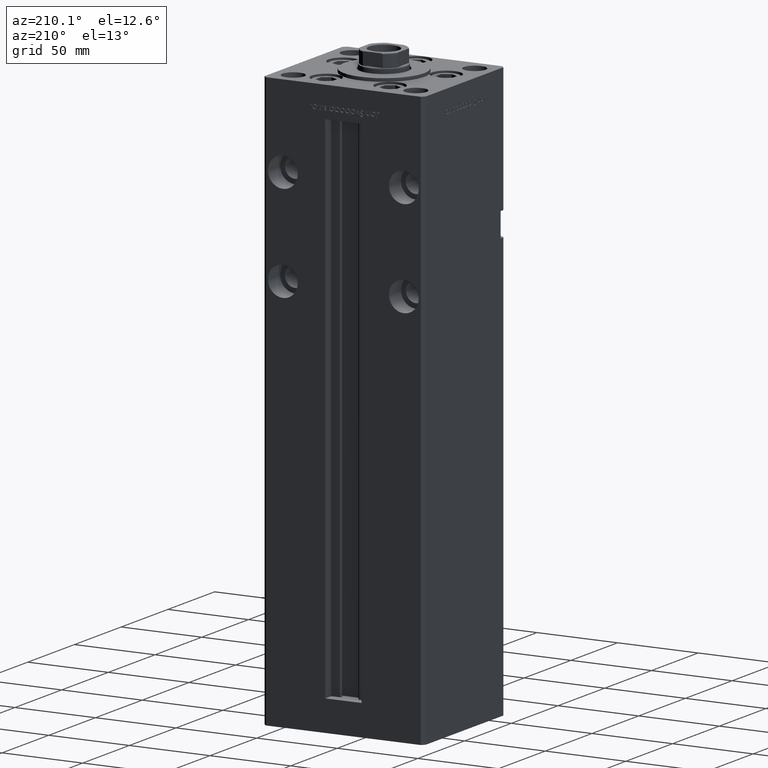
[diagram: clean part render]
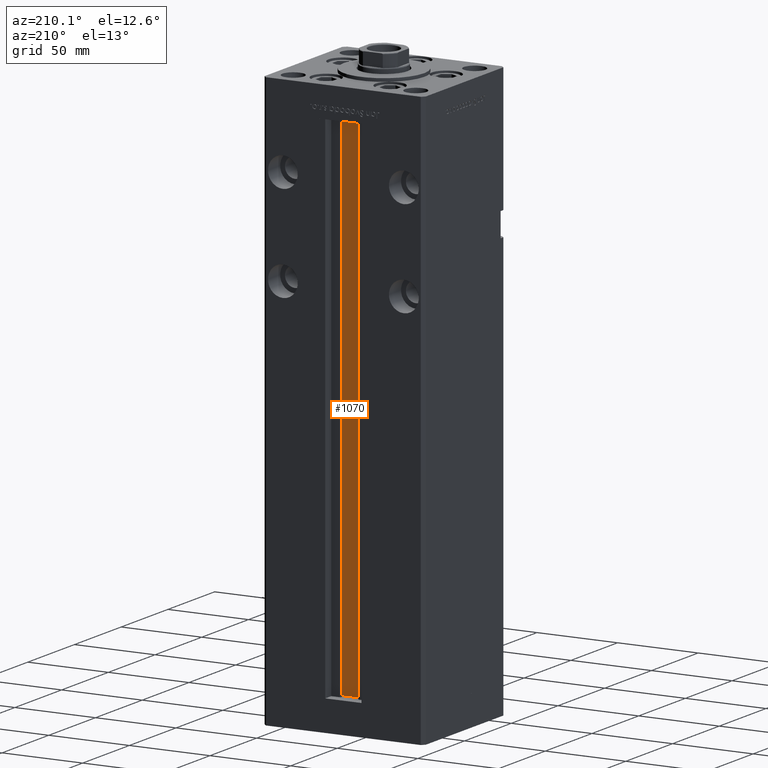
[diagram: same view with one face highlighted and labeled with its STEP entity id]
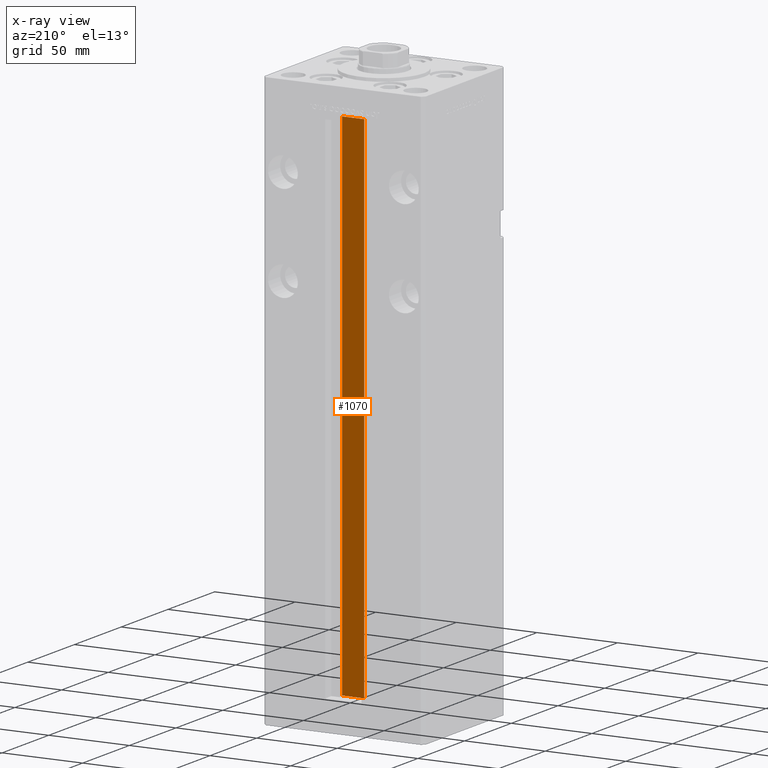
[diagram: x-ray of the same camera — body ghosted, the highlighted face saturated]
A machine part, auxiliary view. The second image highlights one B-rep face of the part: STEP entity #1070.
The next image is the same camera in x-ray: the body ghosted, the highlighted face saturated — about 0% of this face is hidden behind the body in this view.
In plain terms, the highlighted planar face has unit normal (0, -1, 0).
Its self-contained STEP definition (entity closure, byte-faithful):
#1070 = ADVANCED_FACE ( 'NONE', ( #51669 ), #30709, .F. ) ;
#6244 = DIRECTION ( 'NONE',  ( 0.000000000000000000, -1.000000000000000000, -0.000000000000000000 ) ) ;
#8255 = CARTESIAN_POINT ( 'NONE',  ( -6.876153656360465050, 32.99999999999986500, 0.000000000000000000 ) ) ;
#10280 = DIRECTION ( 'NONE',  ( -1.000000000000000000, 0.000000000000000000, 0.000000000000000000 ) ) ;
#11824 = VERTEX_POINT ( 'NONE', #8255 ) ;
#14408 = EDGE_CURVE ( 'NONE', #11824, #32754, #29358, .T. ) ;
#15586 = CARTESIAN_POINT ( 'NONE',  ( -6.876153656360465050, 32.99999999999986500, 318.5000000000000000 ) ) ;
#16484 = CARTESIAN_POINT ( 'NONE',  ( 6.876153656360465050, 32.99999999999986500, 318.5000000000000000 ) ) ;
#19738 = AXIS2_PLACEMENT_3D ( 'NONE', #27458, #6244, #30978 ) ;
#23665 = DIRECTION ( 'NONE',  ( -0.000000000000000000, -0.000000000000000000, 1.000000000000000000 ) ) ;
#23910 = VECTOR ( 'NONE', #23665, 1000.000000000000000 ) ;
#25804 = CARTESIAN_POINT ( 'NONE',  ( 6.876153656360465050, 32.99999999999986500, 0.000000000000000000 ) ) ;
#26423 = LINE ( 'NONE', #47643, #29948 ) ;
#27458 = CARTESIAN_POINT ( 'NONE',  ( 6.876153656360465050, 32.99999999999986500, 0.000000000000000000 ) ) ;
#29358 = LINE ( 'NONE', #49508, #39019 ) ;
#29948 = VECTOR ( 'NONE', #31523, 1000.000000000000000 ) ;
#30709 = PLANE ( 'NONE',  #19738 ) ;
#30978 = DIRECTION ( 'NONE',  ( 0.000000000000000000, 0.000000000000000000, -1.000000000000000000 ) ) ;
#31523 = DIRECTION ( 'NONE',  ( -0.000000000000000000, -0.000000000000000000, 1.000000000000000000 ) ) ;
#32754 = VERTEX_POINT ( 'NONE', #25804 ) ;
#34792 = EDGE_LOOP ( 'NONE', ( #41838, #52272, #37461, #36958 ) ) ;
#35766 = LINE ( 'NONE', #39528, #23910 ) ;
#35812 = CARTESIAN_POINT ( 'NONE',  ( 0.000000000000000000, 32.99999999999986500, 318.5000000000000000 ) ) ;
#36958 = ORIENTED_EDGE ( 'NONE', *, *, #40082, .F. ) ;
#37461 = ORIENTED_EDGE ( 'NONE', *, *, #44260, .T. ) ;
#39019 = VECTOR ( 'NONE', #40644, 1000.000000000000000 ) ;
#39528 = CARTESIAN_POINT ( 'NONE',  ( -6.876153656360465050, 32.99999999999986500, 0.000000000000000000 ) ) ;
#39834 = LINE ( 'NONE', #35812, #48693 ) ;
#40082 = EDGE_CURVE ( 'NONE', #45819, #49533, #39834, .T. ) ;
#40644 = DIRECTION ( 'NONE',  ( 1.000000000000000000, -0.000000000000000000, -0.000000000000000000 ) ) ;
#41838 = ORIENTED_EDGE ( 'NONE', *, *, #48264, .F. ) ;
#44260 = EDGE_CURVE ( 'NONE', #11824, #49533, #35766, .T. ) ;
#45819 = VERTEX_POINT ( 'NONE', #16484 ) ;
#47643 = CARTESIAN_POINT ( 'NONE',  ( 6.876153656360465050, 32.99999999999986500, 0.000000000000000000 ) ) ;
#48264 = EDGE_CURVE ( 'NONE', #32754, #45819, #26423, .T. ) ;
#48693 = VECTOR ( 'NONE', #10280, 1000.000000000000000 ) ;
#49508 = CARTESIAN_POINT ( 'NONE',  ( 6.876153656360465050, 32.99999999999986500, 0.000000000000000000 ) ) ;
#49533 = VERTEX_POINT ( 'NONE', #15586 ) ;
#51669 = FACE_OUTER_BOUND ( 'NONE', #34792, .T. ) ;
#52272 = ORIENTED_EDGE ( 'NONE', *, *, #14408, .F. ) ;